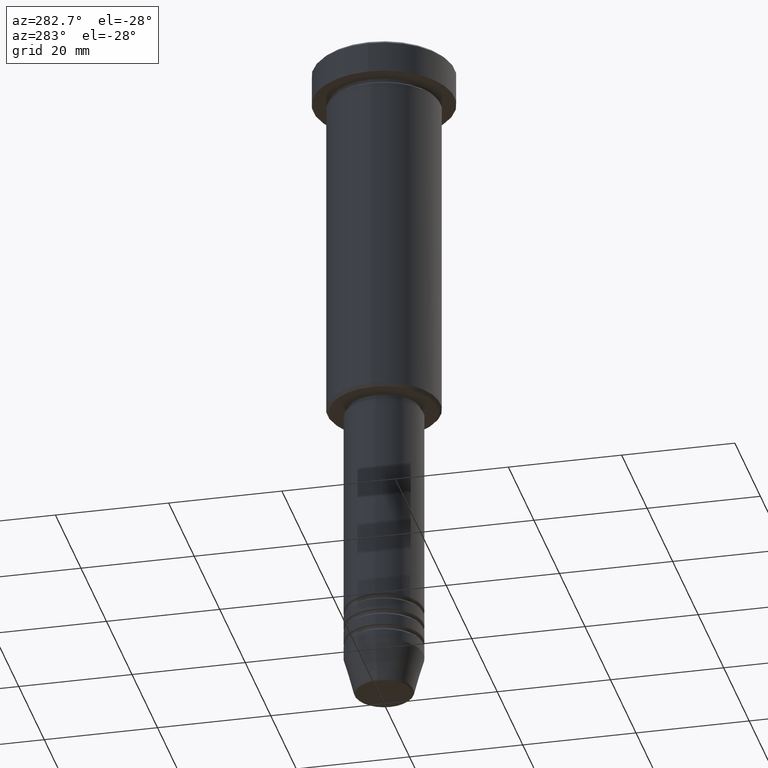
[diagram: clean part render]
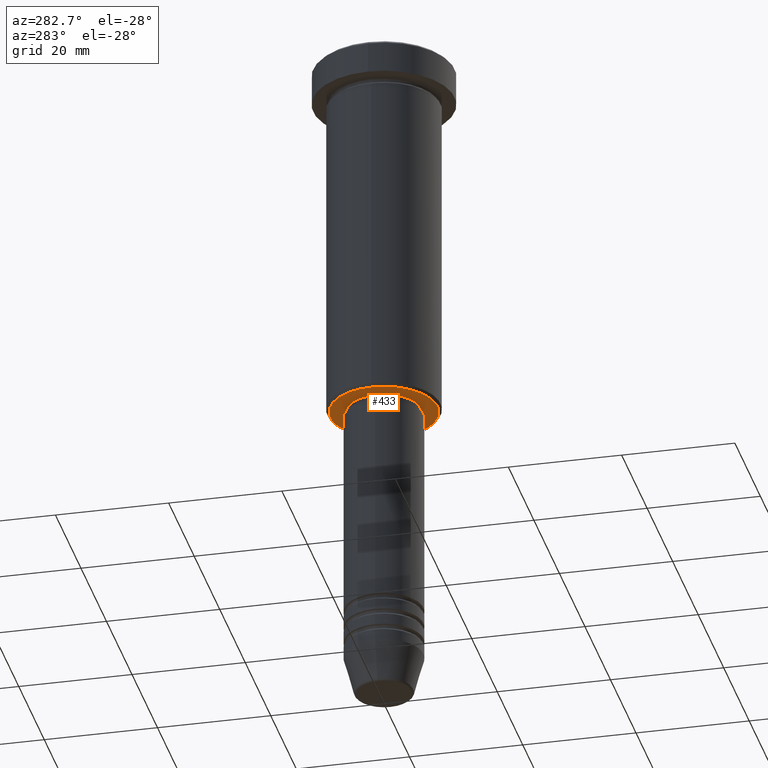
[diagram: same view with one face highlighted and labeled with its STEP entity id]
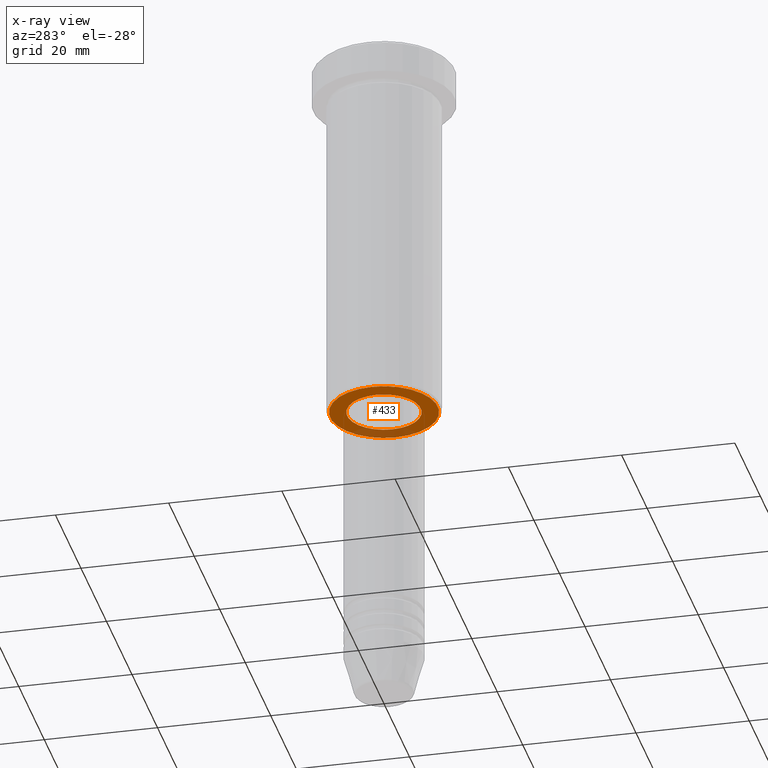
[diagram: x-ray of the same camera — body ghosted, the highlighted face saturated]
A machine part, auxiliary view. The second image highlights one B-rep face of the part: STEP entity #433.
The next image is the same camera in x-ray: the body ghosted, the highlighted face saturated — about 19% of this face is hidden behind the body in this view.
In plain terms, the highlighted planar face has unit normal (0, 0, -1).
Its self-contained STEP definition (entity closure, byte-faithful):
#10 = DIRECTION ( 'NONE',  ( 1.000000000000000000, 0.000000000000000000, 0.000000000000000000 ) ) ;
#56 = CIRCLE ( 'NONE', #98, 9.499999999999980460 ) ;
#98 = AXIS2_PLACEMENT_3D ( 'NONE', #621, #187, #984 ) ;
#187 = DIRECTION ( 'NONE',  ( 0.000000000000000000, 0.000000000000000000, -1.000000000000000000 ) ) ;
#224 = EDGE_CURVE ( 'NONE', #295, #1093, #591, .T. ) ;
#249 = CARTESIAN_POINT ( 'NONE',  ( 6.500000000000000000, 0.000000000000000000, -66.00000000000000000 ) ) ;
#295 = VERTEX_POINT ( 'NONE', #1002 ) ;
#300 = AXIS2_PLACEMENT_3D ( 'NONE', #558, #480, #10 ) ;
#321 = PLANE ( 'NONE',  #411 ) ;
#324 = EDGE_CURVE ( 'NONE', #727, #1029, #56, .T. ) ;
#329 = EDGE_LOOP ( 'NONE', ( #1097, #542 ) ) ;
#361 = EDGE_LOOP ( 'NONE', ( #1108, #739 ) ) ;
#411 = AXIS2_PLACEMENT_3D ( 'NONE', #942, #589, #1140 ) ;
#415 = FACE_OUTER_BOUND ( 'NONE', #329, .T. ) ;
#433 = ADVANCED_FACE ( 'NONE', ( #415, #485 ), #321, .T. ) ;
#460 = EDGE_CURVE ( 'NONE', #1029, #727, #779, .T. ) ;
#480 = DIRECTION ( 'NONE',  ( -0.000000000000000000, -0.000000000000000000, 1.000000000000000000 ) ) ;
#485 = FACE_BOUND ( 'NONE', #361, .T. ) ;
#542 = ORIENTED_EDGE ( 'NONE', *, *, #460, .T. ) ;
#558 = CARTESIAN_POINT ( 'NONE',  ( 0.000000000000000000, 0.000000000000000000, -66.00000000000000000 ) ) ;
#589 = DIRECTION ( 'NONE',  ( 0.000000000000000000, 0.000000000000000000, -1.000000000000000000 ) ) ;
#591 = CIRCLE ( 'NONE', #300, 6.500000000000000000 ) ;
#606 = AXIS2_PLACEMENT_3D ( 'NONE', #1030, #945, #1043 ) ;
#621 = CARTESIAN_POINT ( 'NONE',  ( 0.000000000000000000, 0.000000000000000000, -66.00000000000000000 ) ) ;
#721 = CARTESIAN_POINT ( 'NONE',  ( 0.000000000000000000, 0.000000000000000000, -66.00000000000000000 ) ) ;
#727 = VERTEX_POINT ( 'NONE', #825 ) ;
#739 = ORIENTED_EDGE ( 'NONE', *, *, #224, .T. ) ;
#779 = CIRCLE ( 'NONE', #606, 9.499999999999980460 ) ;
#804 = DIRECTION ( 'NONE',  ( -0.000000000000000000, -0.000000000000000000, 1.000000000000000000 ) ) ;
#825 = CARTESIAN_POINT ( 'NONE',  ( 9.499999999999980460, 0.000000000000000000, -66.00000000000000000 ) ) ;
#928 = CARTESIAN_POINT ( 'NONE',  ( -9.499999999999980460, 1.194030629168668286E-15, -66.00000000000000000 ) ) ;
#935 = EDGE_CURVE ( 'NONE', #1093, #295, #1154, .T. ) ;
#942 = CARTESIAN_POINT ( 'NONE',  ( 0.000000000000000000, 10.00000000000000000, -66.00000000000000000 ) ) ;
#945 = DIRECTION ( 'NONE',  ( 0.000000000000000000, 0.000000000000000000, -1.000000000000000000 ) ) ;
#984 = DIRECTION ( 'NONE',  ( -1.000000000000000000, 0.000000000000000000, 0.000000000000000000 ) ) ;
#1002 = CARTESIAN_POINT ( 'NONE',  ( -6.500000000000000000, 7.960204194457795477E-16, -66.00000000000000000 ) ) ;
#1027 = DIRECTION ( 'NONE',  ( 1.000000000000000000, 0.000000000000000000, 0.000000000000000000 ) ) ;
#1029 = VERTEX_POINT ( 'NONE', #928 ) ;
#1030 = CARTESIAN_POINT ( 'NONE',  ( 0.000000000000000000, 0.000000000000000000, -66.00000000000000000 ) ) ;
#1037 = AXIS2_PLACEMENT_3D ( 'NONE', #721, #804, #1027 ) ;
#1043 = DIRECTION ( 'NONE',  ( -1.000000000000000000, 0.000000000000000000, 0.000000000000000000 ) ) ;
#1093 = VERTEX_POINT ( 'NONE', #249 ) ;
#1097 = ORIENTED_EDGE ( 'NONE', *, *, #324, .T. ) ;
#1108 = ORIENTED_EDGE ( 'NONE', *, *, #935, .T. ) ;
#1140 = DIRECTION ( 'NONE',  ( -1.000000000000000000, 0.000000000000000000, -0.000000000000000000 ) ) ;
#1154 = CIRCLE ( 'NONE', #1037, 6.500000000000000000 ) ;